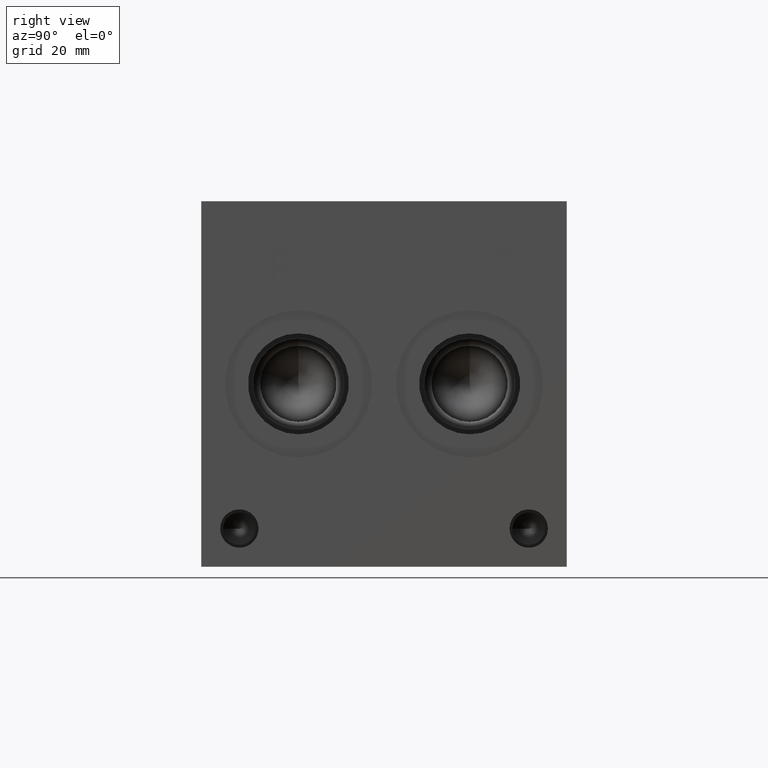
[diagram: clean part render]
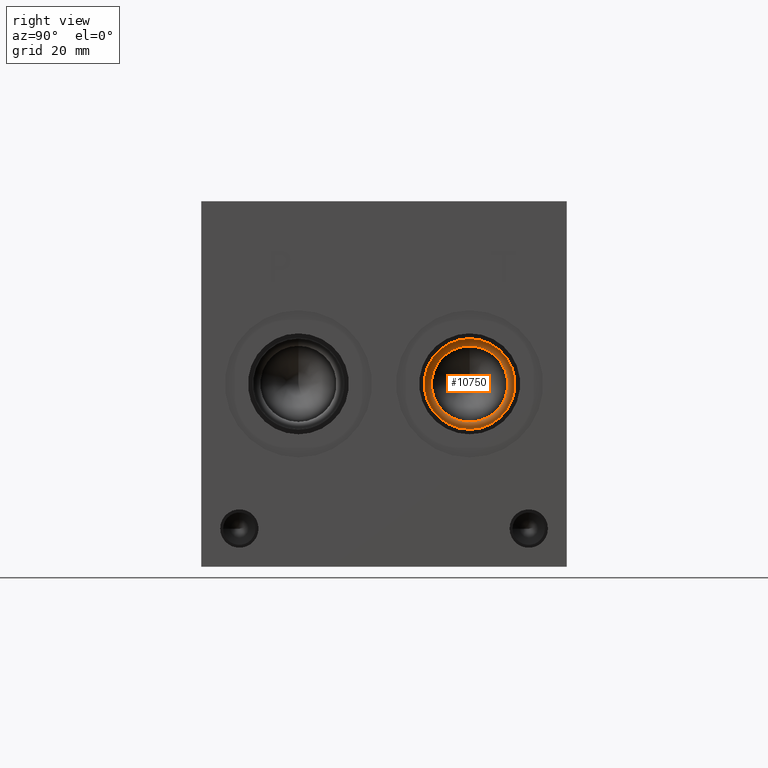
[diagram: same view with one face highlighted and labeled with its STEP entity id]
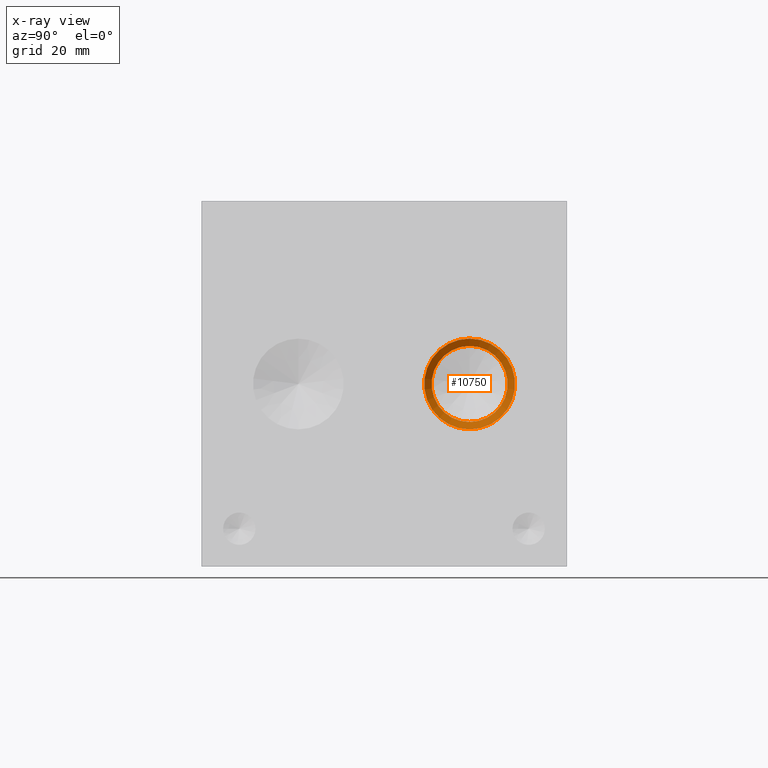
[diagram: x-ray of the same camera — body ghosted, the highlighted face saturated]
A machine part, right view. The second image highlights one B-rep face of the part: STEP entity #10750.
The next image is the same camera in x-ray: the body ghosted, the highlighted face saturated — about 0% of this face is hidden behind the body in this view.
In plain terms, the highlighted conical surface has half-angle 60 deg.
Its self-contained STEP definition (entity closure, byte-faithful):
#14=CONICAL_SURFACE('',#11224,8.6995,1.04719755623842);
#134=CIRCLE('',#11223,9.4615);
#135=CIRCLE('',#11225,7.9375);
#1246=FACE_OUTER_BOUND('',#1890,.T.);
#1890=EDGE_LOOP('',(#9050,#9051,#9052,#9053));
#3004=LINE('',#18111,#4044);
#4044=VECTOR('',#13061,8.6995);
#4983=VERTEX_POINT('',#18106);
#4984=VERTEX_POINT('',#18110);
#6376=EDGE_CURVE('',#4983,#4983,#134,.T.);
#6377=EDGE_CURVE('',#4983,#4984,#3004,.T.);
#6378=EDGE_CURVE('',#4984,#4984,#135,.T.);
#9050=ORIENTED_EDGE('',*,*,#6376,.F.);
#9051=ORIENTED_EDGE('',*,*,#6377,.T.);
#9052=ORIENTED_EDGE('',*,*,#6378,.T.);
#9053=ORIENTED_EDGE('',*,*,#6377,.F.);
#10750=ADVANCED_FACE('',(#1246),#14,.F.);
#11223=AXIS2_PLACEMENT_3D('',#18108,#13057,#13058);
#11224=AXIS2_PLACEMENT_3D('',#18109,#13059,#13060);
#11225=AXIS2_PLACEMENT_3D('',#18112,#13062,#13063);
#13057=DIRECTION('center_axis',(-1.,0.,0.));
#13058=DIRECTION('ref_axis',(0.,0.,1.));
#13059=DIRECTION('center_axis',(1.,0.,0.));
#13060=DIRECTION('ref_axis',(0.,0.,-1.));
#13061=DIRECTION('',(-0.499999995633652,-1.06057524181213E-16,-0.866025406305351));
#13062=DIRECTION('center_axis',(-1.,0.,0.));
#13063=DIRECTION('ref_axis',(0.,0.,1.));
#18106=CARTESIAN_POINT('',(88.7237996,55.9562,47.5615));
#18108=CARTESIAN_POINT('Origin',(88.7237996,55.9562,38.1));
#18109=CARTESIAN_POINT('Origin',(88.2838587,55.9562,38.1));
#18110=CARTESIAN_POINT('',(87.8439178,55.9562,46.0375));
#18111=CARTESIAN_POINT('',(88.2838587,55.9562,46.7995));
#18112=CARTESIAN_POINT('Origin',(87.8439178,55.9562,38.1));